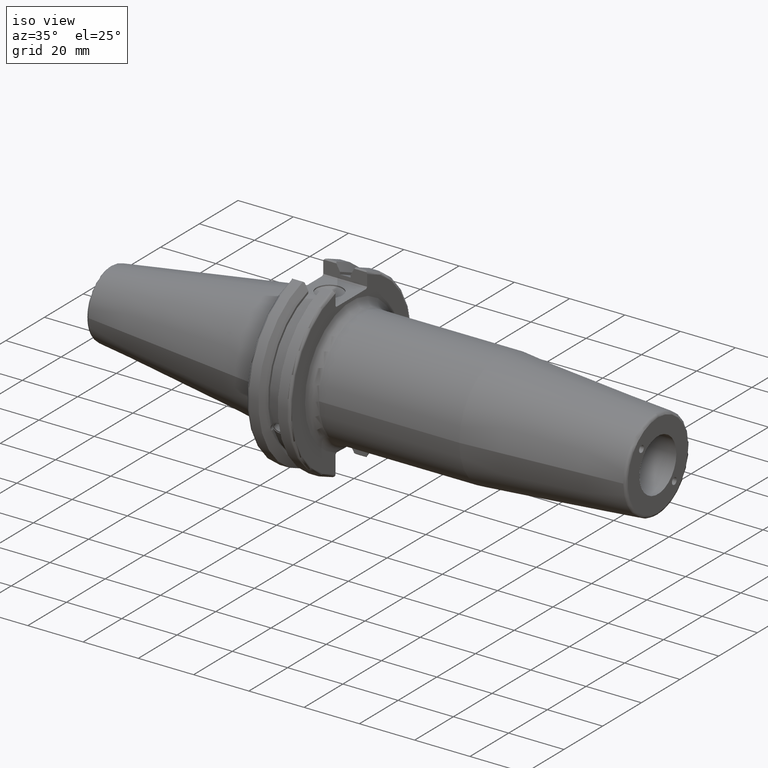
[diagram: clean part render]
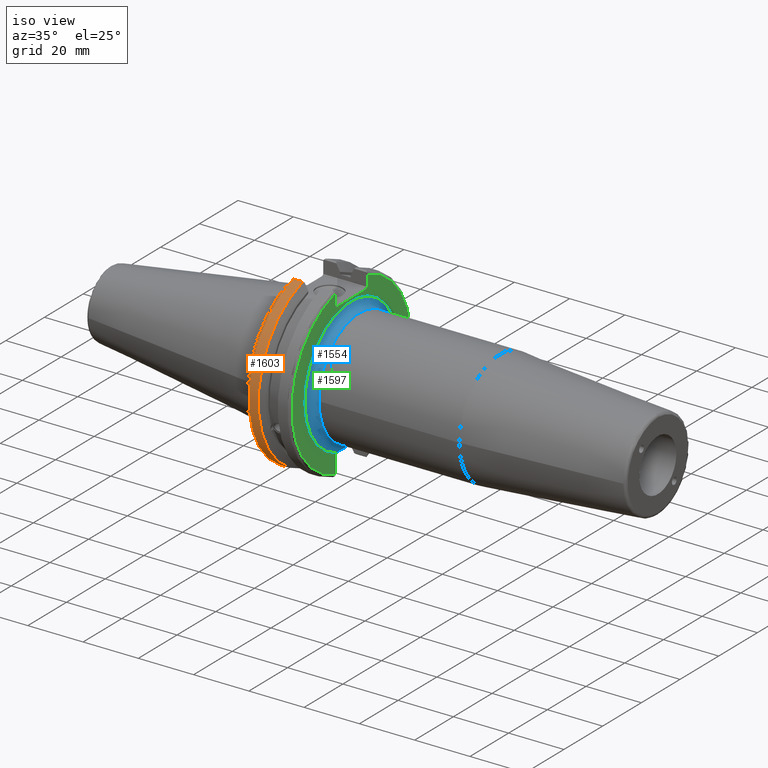
[diagram: same view with three faces highlighted in distinct colors, each labeled with its STEP entity id]
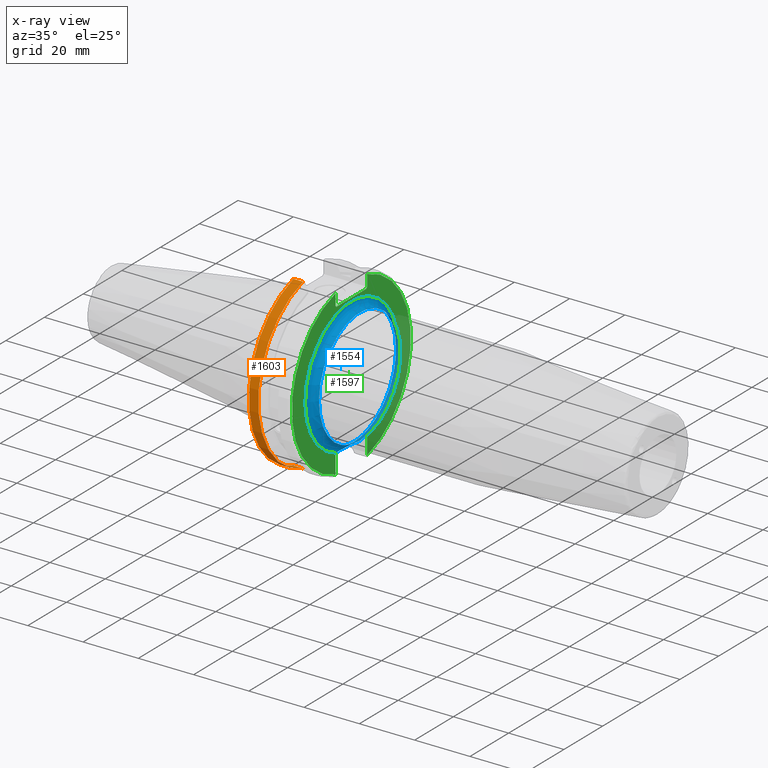
[diagram: x-ray of the same camera — body ghosted, the three highlighted faces saturated]
A machine part, iso view with three faces highlighted in distinct colors.
The next image is the same camera in x-ray (body ghosted, the three faces saturated) — at least one of them is partly hidden behind the body in this view.
Their STEP definitions:

[orange] entity #1603 — the highlighted cylindrical surface (partial cylindrical patch) has radius 31.75 mm, axis along (1, 0, 0).
#170=CYLINDRICAL_SURFACE('',#1793,31.75);
#234=FACE_OUTER_BOUND('',#339,.T.);
#339=EDGE_LOOP('',(#1372,#1373,#1374,#1375));
#451=LINE('',#3006,#548);
#452=LINE('',#3012,#549);
#548=VECTOR('',#2187,10.);
#549=VECTOR('',#2190,10.);
#626=CIRCLE('',#1791,31.75);
#627=CIRCLE('',#1794,31.75);
#784=VERTEX_POINT('',#2985);
#785=VERTEX_POINT('',#2994);
#786=VERTEX_POINT('',#3005);
#787=VERTEX_POINT('',#3011);
#997=EDGE_CURVE('',#784,#785,#626,.T.);
#999=EDGE_CURVE('',#785,#786,#451,.T.);
#1001=EDGE_CURVE('',#787,#784,#452,.T.);
#1002=EDGE_CURVE('',#786,#787,#627,.T.);
#1372=ORIENTED_EDGE('',*,*,#997,.F.);
#1373=ORIENTED_EDGE('',*,*,#1001,.F.);
#1374=ORIENTED_EDGE('',*,*,#1002,.F.);
#1375=ORIENTED_EDGE('',*,*,#999,.F.);
#1603=ADVANCED_FACE('',(#234),#170,.T.);
#1791=AXIS2_PLACEMENT_3D('',#2995,#2183,#2184);
#1793=AXIS2_PLACEMENT_3D('',#3010,#2188,#2189);
#1794=AXIS2_PLACEMENT_3D('',#3013,#2191,#2192);
#2183=DIRECTION('center_axis',(-1.,0.,0.));
#2184=DIRECTION('ref_axis',(0.,-1.,1.60812264967664E-16));
#2187=DIRECTION('',(1.,0.,0.));
#2188=DIRECTION('center_axis',(1.,0.,0.));
#2189=DIRECTION('ref_axis',(0.,-1.,1.22464679914735E-16));
#2190=DIRECTION('',(-1.,0.,0.));
#2191=DIRECTION('center_axis',(1.,0.,0.));
#2192=DIRECTION('ref_axis',(0.,0.,-1.));
#2985=CARTESIAN_POINT('',(4.175,-8.67204822802685,-30.5427254764662));
#2994=CARTESIAN_POINT('',(4.175,-8.67204822802685,30.5427254764662));
#2995=CARTESIAN_POINT('Origin',(4.175,0.,0.));
#3005=CARTESIAN_POINT('',(7.60793323092436,-8.67204822802685,30.5427254764662));
#3006=CARTESIAN_POINT('',(5.39146661546218,-8.67204822802685,30.5427254764662));
#3010=CARTESIAN_POINT('Origin',(5.39146661546218,0.,0.));
#3011=CARTESIAN_POINT('',(7.60793323092436,-8.67204822802685,-30.5427254764662));
#3012=CARTESIAN_POINT('',(5.39146661546218,-8.67204822802685,-30.5427254764662));
#3013=CARTESIAN_POINT('Origin',(7.60793323092436,0.,0.));

[blue] entity #1554 — the highlighted toroidal blend (fillet) surface has major radius 24 mm and minor (blend) radius 3 mm.
#31=B_SPLINE_CURVE_WITH_KNOTS('',3,(#2359,#2360,#2361,#2362,#2363,#2364,
#2365,#2366),.UNSPECIFIED.,.F.,.F.,(4,2,2,4),(3.0216236412766,3.28363628936794,
3.54564893745927,3.74225815963158),.UNSPECIFIED.);
#32=B_SPLINE_CURVE_WITH_KNOTS('',3,(#2368,#2369,#2370,#2371),
 .UNSPECIFIED.,.F.,.F.,(4,4),(1.40009398294628,1.41404503547573),
 .UNSPECIFIED.);
#33=B_SPLINE_CURVE_WITH_KNOTS('',3,(#2375,#2376,#2377,#2378),
 .UNSPECIFIED.,.F.,.F.,(4,4),(0.466891581460793,0.480842633994298),
 .UNSPECIFIED.);
#34=B_SPLINE_CURVE_WITH_KNOTS('',3,(#2379,#2380,#2381,#2382,#2383,#2384,
#2385,#2386),.UNSPECIFIED.,.F.,.F.,(4,2,2,4),(2.30098912292435,2.49759834509393,
2.75961099318527,3.0216236412766),.UNSPECIFIED.);
#120=TOROIDAL_SURFACE('',#1678,24.,3.);
#185=FACE_OUTER_BOUND('',#279,.T.);
#279=EDGE_LOOP('',(#1076,#1077,#1078,#1079,#1080,#1081,#1082,#1083,#1084));
#579=CIRCLE('',#1679,21.);
#580=CIRCLE('',#1680,3.);
#581=CIRCLE('',#1681,24.);
#582=CIRCLE('',#1682,21.);
#657=VERTEX_POINT('',#2353);
#658=VERTEX_POINT('',#2354);
#659=VERTEX_POINT('',#2356);
#660=VERTEX_POINT('',#2358);
#661=VERTEX_POINT('',#2367);
#662=VERTEX_POINT('',#2372);
#663=VERTEX_POINT('',#2374);
#821=EDGE_CURVE('',#657,#658,#579,.T.);
#822=EDGE_CURVE('',#658,#659,#580,.T.);
#823=EDGE_CURVE('',#660,#659,#31,.F.);
#824=EDGE_CURVE('',#661,#660,#32,.F.);
#825=EDGE_CURVE('',#661,#662,#581,.T.);
#826=EDGE_CURVE('',#663,#662,#33,.F.);
#827=EDGE_CURVE('',#659,#663,#34,.F.);
#828=EDGE_CURVE('',#658,#657,#582,.T.);
#1076=ORIENTED_EDGE('',*,*,#821,.T.);
#1077=ORIENTED_EDGE('',*,*,#822,.T.);
#1078=ORIENTED_EDGE('',*,*,#823,.F.);
#1079=ORIENTED_EDGE('',*,*,#824,.F.);
#1080=ORIENTED_EDGE('',*,*,#825,.T.);
#1081=ORIENTED_EDGE('',*,*,#826,.F.);
#1082=ORIENTED_EDGE('',*,*,#827,.F.);
#1083=ORIENTED_EDGE('',*,*,#822,.F.);
#1084=ORIENTED_EDGE('',*,*,#828,.T.);
#1554=ADVANCED_FACE('',(#185),#120,.F.);
#1678=AXIS2_PLACEMENT_3D('',#2352,#1888,#1889);
#1679=AXIS2_PLACEMENT_3D('',#2355,#1890,#1891);
#1680=AXIS2_PLACEMENT_3D('',#2357,#1892,#1893);
#1681=AXIS2_PLACEMENT_3D('',#2373,#1894,#1895);
#1682=AXIS2_PLACEMENT_3D('',#2387,#1896,#1897);
#1888=DIRECTION('center_axis',(-1.,0.,0.));
#1889=DIRECTION('ref_axis',(0.,0.,1.));
#1890=DIRECTION('center_axis',(-1.,0.,0.));
#1891=DIRECTION('ref_axis',(0.,-1.,-1.22464679914735E-16));
#1892=DIRECTION('center_axis',(0.,-1.,1.22464679914735E-16));
#1893=DIRECTION('ref_axis',(0.,-1.22464679914735E-16,-1.));
#1894=DIRECTION('center_axis',(1.,0.,0.));
#1895=DIRECTION('ref_axis',(0.,-1.,-1.22464679914735E-16));
#1896=DIRECTION('center_axis',(-1.,0.,0.));
#1897=DIRECTION('ref_axis',(0.,-1.,-1.22464679914735E-16));
#2352=CARTESIAN_POINT('Origin',(22.05,0.,0.));
#2353=CARTESIAN_POINT('',(22.05,-21.,-2.57175827820944E-15));
#2354=CARTESIAN_POINT('',(22.05,-2.57175827820944E-15,-21.));
#2355=CARTESIAN_POINT('Origin',(22.05,0.,0.));
#2356=CARTESIAN_POINT('',(19.3967001677157,-1.38385088303651E-15,-22.6));
#2357=CARTESIAN_POINT('Origin',(22.05,-2.93915231795365E-15,-24.));
#2358=CARTESIAN_POINT('',(19.0527107387712,7.68999999999903,-22.5999999999997));
#2359=CARTESIAN_POINT('Ctrl Pts',(19.3967001677157,0.,-22.6));
#2360=CARTESIAN_POINT('Ctrl Pts',(19.3967001677157,0.873375493637784,-22.6));
#2361=CARTESIAN_POINT('Ctrl Pts',(19.36568730967,1.83307700034502,-22.6));
#2362=CARTESIAN_POINT('Ctrl Pts',(19.260184656287,3.75074838316052,-22.6));
#2363=CARTESIAN_POINT('Ctrl Pts',(19.1897248959444,4.70893785217619,-22.6));
#2364=CARTESIAN_POINT('Ctrl Pts',(19.0991248022468,6.23499037040782,-22.6));
#2365=CARTESIAN_POINT('Ctrl Pts',(19.0621726707475,6.99950800192411,-22.6));
#2366=CARTESIAN_POINT('Ctrl Pts',(19.0527107387712,7.68999999999903,-22.6));
#2367=CARTESIAN_POINT('',(19.05,7.79042472350311,-22.7004247235031));
#2368=CARTESIAN_POINT('Ctrl Pts',(19.0527107387708,7.69000000000736,-22.6000000000074));
#2369=CARTESIAN_POINT('Ctrl Pts',(19.0508750457563,7.72400994662633,-22.6340099466263));
#2370=CARTESIAN_POINT('Ctrl Pts',(19.05,7.75754177734223,-22.6675417773422));
#2371=CARTESIAN_POINT('Ctrl Pts',(19.05,7.79042472350312,-22.7004247235031));
#2372=CARTESIAN_POINT('',(19.05,-7.79042472350311,-22.7004247235031));
#2373=CARTESIAN_POINT('Origin',(19.05,0.,0.));
#2374=CARTESIAN_POINT('',(19.0527107387728,-7.68999999997033,-22.5999999999852));
#2375=CARTESIAN_POINT('Ctrl Pts',(19.05,-7.79042472350312,-22.7004247235031));
#2376=CARTESIAN_POINT('Ctrl Pts',(19.05,-7.75754177733268,-22.6675417773327));
#2377=CARTESIAN_POINT('Ctrl Pts',(19.0508750457568,-7.72400994660686,-22.6340099466069));
#2378=CARTESIAN_POINT('Ctrl Pts',(19.0527107387724,-7.68999999997773,-22.5999999999777));
#2379=CARTESIAN_POINT('Ctrl Pts',(19.0527107387716,-7.68999999997031,-22.6));
#2380=CARTESIAN_POINT('Ctrl Pts',(19.0621726707484,-6.99950800190292,-22.6));
#2381=CARTESIAN_POINT('Ctrl Pts',(19.0991248022473,-6.23499037039875,-22.6));
#2382=CARTESIAN_POINT('Ctrl Pts',(19.1897248959444,-4.70893785217619,-22.6));
#2383=CARTESIAN_POINT('Ctrl Pts',(19.260184656287,-3.75074838316052,-22.6));
#2384=CARTESIAN_POINT('Ctrl Pts',(19.36568730967,-1.83307700034502,-22.6));
#2385=CARTESIAN_POINT('Ctrl Pts',(19.3967001677157,-0.873375493637784,-22.6));
#2386=CARTESIAN_POINT('Ctrl Pts',(19.3967001677157,0.,-22.6));
#2387=CARTESIAN_POINT('Origin',(22.05,0.,0.));

[green] entity #1597 — the highlighted planar face has unit normal (1, 0, 0).
#96=PLANE('',#1784);
#228=FACE_OUTER_BOUND('',#333,.T.);
#333=EDGE_LOOP('',(#1320,#1321,#1322,#1323,#1324,#1325,#1326,#1327,#1328,
#1329,#1330,#1331));
#431=LINE('',#2884,#528);
#434=LINE('',#2898,#531);
#435=LINE('',#2900,#532);
#436=LINE('',#2902,#533);
#437=LINE('',#2904,#534);
#438=LINE('',#2906,#535);
#439=LINE('',#2908,#536);
#440=LINE('',#2912,#537);
#441=LINE('',#2913,#538);
#528=VECTOR('',#2149,10.);
#531=VECTOR('',#2154,10.);
#532=VECTOR('',#2155,10.);
#533=VECTOR('',#2156,10.);
#534=VECTOR('',#2157,10.);
#535=VECTOR('',#2158,10.);
#536=VECTOR('',#2159,10.);
#537=VECTOR('',#2162,10.);
#538=VECTOR('',#2163,10.);
#581=CIRCLE('',#1681,24.);
#622=CIRCLE('',#1780,30.75);
#624=CIRCLE('',#1785,30.75);
#661=VERTEX_POINT('',#2367);
#662=VERTEX_POINT('',#2372);
#757=VERTEX_POINT('',#2839);
#758=VERTEX_POINT('',#2846);
#764=VERTEX_POINT('',#2883);
#766=VERTEX_POINT('',#2899);
#767=VERTEX_POINT('',#2901);
#768=VERTEX_POINT('',#2903);
#769=VERTEX_POINT('',#2905);
#770=VERTEX_POINT('',#2907);
#771=VERTEX_POINT('',#2909);
#772=VERTEX_POINT('',#2911);
#825=EDGE_CURVE('',#661,#662,#581,.T.);
#956=EDGE_CURVE('',#757,#758,#622,.T.);
#964=EDGE_CURVE('',#764,#758,#431,.T.);
#969=EDGE_CURVE('',#764,#661,#434,.T.);
#970=EDGE_CURVE('',#757,#766,#435,.T.);
#971=EDGE_CURVE('',#767,#766,#436,.T.);
#972=EDGE_CURVE('',#767,#768,#437,.T.);
#973=EDGE_CURVE('',#769,#768,#438,.T.);
#974=EDGE_CURVE('',#769,#770,#439,.T.);
#975=EDGE_CURVE('',#771,#770,#624,.T.);
#976=EDGE_CURVE('',#771,#772,#440,.T.);
#977=EDGE_CURVE('',#662,#772,#441,.T.);
#1320=ORIENTED_EDGE('',*,*,#825,.F.);
#1321=ORIENTED_EDGE('',*,*,#969,.F.);
#1322=ORIENTED_EDGE('',*,*,#964,.T.);
#1323=ORIENTED_EDGE('',*,*,#956,.F.);
#1324=ORIENTED_EDGE('',*,*,#970,.T.);
#1325=ORIENTED_EDGE('',*,*,#971,.F.);
#1326=ORIENTED_EDGE('',*,*,#972,.T.);
#1327=ORIENTED_EDGE('',*,*,#973,.F.);
#1328=ORIENTED_EDGE('',*,*,#974,.T.);
#1329=ORIENTED_EDGE('',*,*,#975,.F.);
#1330=ORIENTED_EDGE('',*,*,#976,.T.);
#1331=ORIENTED_EDGE('',*,*,#977,.F.);
#1597=ADVANCED_FACE('',(#228),#96,.T.);
#1681=AXIS2_PLACEMENT_3D('',#2373,#1894,#1895);
#1780=AXIS2_PLACEMENT_3D('',#2847,#2139,#2140);
#1784=AXIS2_PLACEMENT_3D('',#2897,#2152,#2153);
#1785=AXIS2_PLACEMENT_3D('',#2910,#2160,#2161);
#1894=DIRECTION('center_axis',(1.,0.,0.));
#1895=DIRECTION('ref_axis',(0.,-1.,-1.22464679914735E-16));
#2139=DIRECTION('center_axis',(-1.,0.,0.));
#2140=DIRECTION('ref_axis',(0.,1.,-6.12323399573677E-17));
#2149=DIRECTION('',(0.,0.,-1.));
#2152=DIRECTION('center_axis',(1.,0.,0.));
#2153=DIRECTION('ref_axis',(0.,0.,-1.));
#2154=DIRECTION('',(0.,-0.707106781186549,0.707106781186546));
#2155=DIRECTION('',(0.,0.,-1.));
#2156=DIRECTION('',(0.,0.707106781186549,0.707106781186546));
#2157=DIRECTION('',(0.,-1.,0.));
#2158=DIRECTION('',(0.,0.70710678118655,-0.707106781186545));
#2159=DIRECTION('',(0.,0.,1.));
#2160=DIRECTION('center_axis',(-1.,0.,0.));
#2161=DIRECTION('ref_axis',(0.,-1.,1.60812264967664E-16));
#2162=DIRECTION('',(0.,0.,1.));
#2163=DIRECTION('',(0.,-0.707106781186549,-0.707106781186546));
#2367=CARTESIAN_POINT('',(19.05,7.79042472350311,-22.7004247235031));
#2372=CARTESIAN_POINT('',(19.05,-7.79042472350311,-22.7004247235031));
#2373=CARTESIAN_POINT('Origin',(19.05,0.,0.));
#2839=CARTESIAN_POINT('',(19.05,8.19,29.6392712461019));
#2846=CARTESIAN_POINT('',(19.05,8.19,-29.6392712461019));
#2847=CARTESIAN_POINT('Origin',(19.05,0.,0.));
#2883=CARTESIAN_POINT('',(19.05,8.19,-23.1));
#2884=CARTESIAN_POINT('',(19.05,8.19,-11.3));
#2897=CARTESIAN_POINT('Origin',(19.05,0.,0.));
#2898=CARTESIAN_POINT('',(19.05,0.242499999999989,-15.1525));
#2899=CARTESIAN_POINT('',(19.05,8.19,25.5));
#2900=CARTESIAN_POINT('',(19.05,8.19,12.5));
#2901=CARTESIAN_POINT('',(19.05,7.69,25.));
#2902=CARTESIAN_POINT('',(19.05,-0.35750000000001,16.9525));
#2903=CARTESIAN_POINT('',(19.05,-7.69,25.));
#2904=CARTESIAN_POINT('',(19.05,0.,25.));
#2905=CARTESIAN_POINT('',(19.05,-8.19,25.5));
#2906=CARTESIAN_POINT('',(19.05,0.357500000000014,16.9525));
#2907=CARTESIAN_POINT('',(19.05,-8.19,29.6392712461019));
#2908=CARTESIAN_POINT('',(19.05,-8.19,12.5));
#2909=CARTESIAN_POINT('',(19.05,-8.19,-29.6392712461019));
#2910=CARTESIAN_POINT('Origin',(19.05,0.,0.));
#2911=CARTESIAN_POINT('',(19.05,-8.19,-23.1));
#2912=CARTESIAN_POINT('',(19.05,-8.19,-11.3));
#2913=CARTESIAN_POINT('',(19.05,-0.242499999999991,-15.1525));